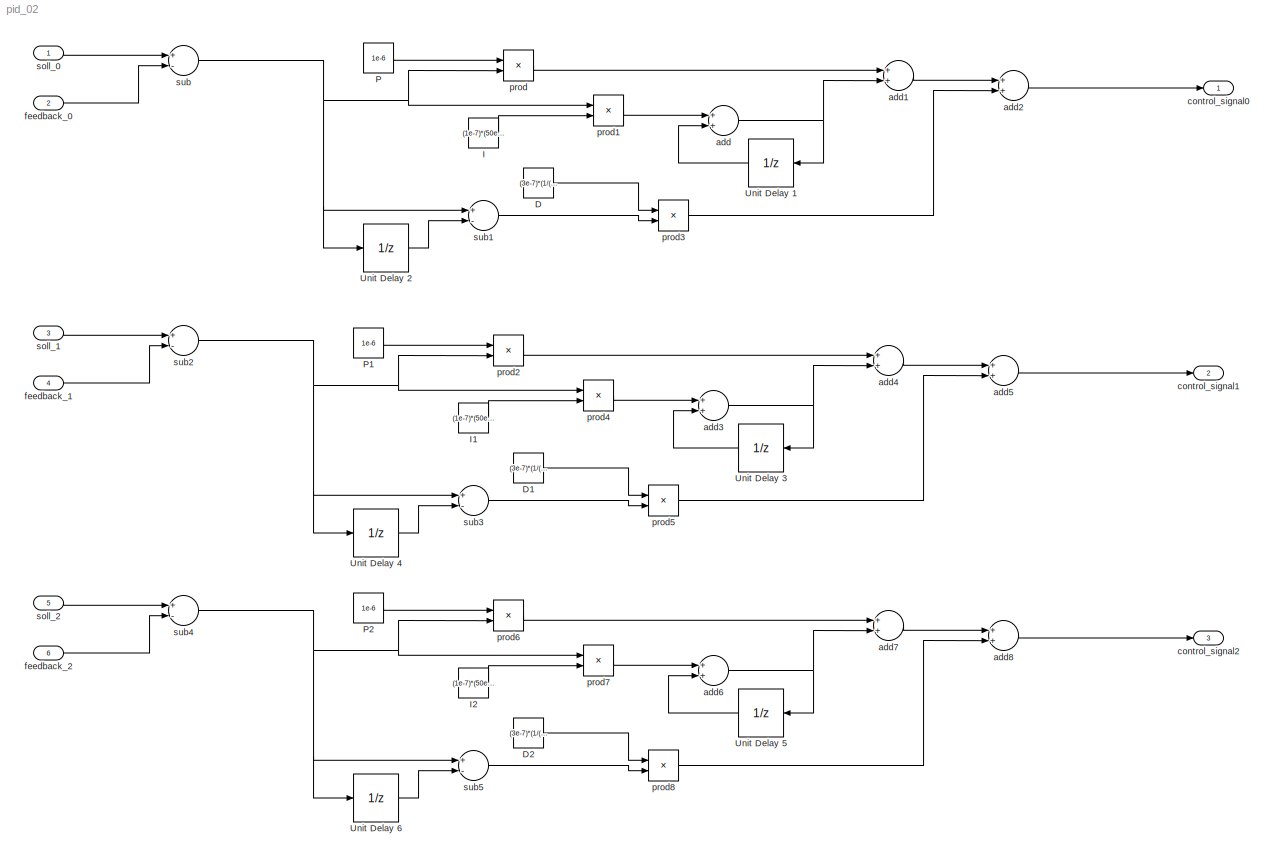
MODEL pid_02
KIND model
WORKSPACE source: MATLAB code (in-file)
WORKSPACE SampleRate = 20000
WORKSPACE Ts = 1/SampleRate  (= 5e-05)
WORKSPACE M = 1.4e-6  (= 1.4e-06)
WORKSPACE saturationlimit = 7.9999
WORKSPACE acceleration = 4000000
WORKSPACE accel_period = 10
BLOCK [Constant] D
  OutDataTypeStr = Inherit: Inherit via back propagation
  SID = 415
  Value = (3e-7)*(1/(50e-6))
BLOCK [Constant] D1
  OutDataTypeStr = Inherit: Inherit via back propagation
  SID = 419
  Value = (3e-7)*(1/(50e-6))
BLOCK [Constant] D2
  OutDataTypeStr = Inherit: Inherit via back propagation
  SID = 436
  Value = (3e-7)*(1/(50e-6))
BLOCK [Constant] I
  OutDataTypeStr = fixdt(1,16,34)
  SID = 399
  Value = (1e-7)*(50e-6)
BLOCK [Constant] I1
  OutDataTypeStr = fixdt(1,16,34)
  SID = 420
  Value = (1e-7)*(50e-6)
BLOCK [Constant] I2
  OutDataTypeStr = fixdt(1,16,34)
  SID = 437
  Value = (1e-7)*(50e-6)
BLOCK [Constant] P
  OutDataTypeStr = fixdt(1,16,34)
  SID = 392
  Value = 1e-6
BLOCK [Constant] P1
  OutDataTypeStr = fixdt(1,16,34)
  SID = 421
  Value = 1e-6
BLOCK [Constant] P2
  OutDataTypeStr = fixdt(1,16,34)
  SID = 438
  Value = 1e-6
BLOCK [UnitDelay] Unit Delay 1
  HasFrameUpgradeWarning = on
  SID = 398
  SampleTime = -1
BLOCK [UnitDelay] Unit Delay 2
  HasFrameUpgradeWarning = on
  SID = 407
  SampleTime = -1
BLOCK [UnitDelay] Unit Delay 3
  HasFrameUpgradeWarning = on
  SID = 423
  SampleTime = -1
BLOCK [UnitDelay] Unit Delay 4
  HasFrameUpgradeWarning = on
  SID = 424
  SampleTime = -1
BLOCK [UnitDelay] Unit Delay 5
  HasFrameUpgradeWarning = on
  SID = 440
  SampleTime = -1
BLOCK [UnitDelay] Unit Delay 6
  HasFrameUpgradeWarning = on
  SID = 441
  SampleTime = -1
BLOCK [Sum] add
  InputSameDT = off
  OutDataTypeStr = fixdt(1,32,28)
  Ports = [2, 1]
  SID = 401
  SaturateOnIntegerOverflow = off
BLOCK [Sum] add1
  InputSameDT = off
  OutDataTypeStr = fixdt(1,32,28)
  Ports = [2, 1]
  SID = 402
  SaturateOnIntegerOverflow = off
BLOCK [Sum] add2
  InputSameDT = off
  OutDataTypeStr = fixdt(1,32,28)
  Ports = [2, 1]
  SID = 403
  SaturateOnIntegerOverflow = off
BLOCK [Sum] add3
  InputSameDT = off
  OutDataTypeStr = fixdt(1,32,28)
  Ports = [2, 1]
  SID = 425
  SaturateOnIntegerOverflow = off
BLOCK [Sum] add4
  InputSameDT = off
  OutDataTypeStr = fixdt(1,32,28)
  Ports = [2, 1]
  SID = 426
  SaturateOnIntegerOverflow = off
BLOCK [Sum] add5
  InputSameDT = off
  OutDataTypeStr = fixdt(1,32,28)
  Ports = [2, 1]
  SID = 427
  SaturateOnIntegerOverflow = off
BLOCK [Sum] add6
  InputSameDT = off
  OutDataTypeStr = fixdt(1,32,28)
  Ports = [2, 1]
  SID = 442
  SaturateOnIntegerOverflow = off
BLOCK [Sum] add7
  InputSameDT = off
  OutDataTypeStr = fixdt(1,32,28)
  Ports = [2, 1]
  SID = 443
  SaturateOnIntegerOverflow = off
BLOCK [Sum] add8
  InputSameDT = off
  OutDataTypeStr = fixdt(1,32,28)
  Ports = [2, 1]
  SID = 444
  SaturateOnIntegerOverflow = off
BLOCK [Outport] control_signal0
  IconDisplay = Port number
  SID = 144
BLOCK [Outport] control_signal1
  IconDisplay = Port number
  Port = 2
  SID = 433
BLOCK [Outport] control_signal2
  IconDisplay = Port number
  Port = 3
  SID = 450
BLOCK [Inport] feedback_0
  IconDisplay = Port number
  OutDataTypeStr = fixdt(1,32,16)
  Port = 2
  SID = 186
BLOCK [Inport] feedback_1
  IconDisplay = Port number
  OutDataTypeStr = fixdt(1,32,16)
  Port = 4
  SID = 418
BLOCK [Inport] feedback_2
  IconDisplay = Port number
  OutDataTypeStr = fixdt(1,32,16)
  Port = 6
  SID = 435
BLOCK [Product] prod
  InputSameDT = off
  OutDataTypeStr = fixdt(1,32,33)
  Ports = [2, 1]
  SID = 393
  SaturateOnIntegerOverflow = off
BLOCK [Product] prod1
  InputSameDT = off
  OutDataTypeStr = fixdt(1,32,33)
  Ports = [2, 1]
  SID = 400
  SaturateOnIntegerOverflow = off
BLOCK [Product] prod2
  InputSameDT = off
  OutDataTypeStr = fixdt(1,32,33)
  Ports = [2, 1]
  SID = 428
  SaturateOnIntegerOverflow = off
BLOCK [Product] prod3
  InputSameDT = off
  OutDataTypeStr = fixdt(1,32,33)
  Ports = [2, 1]
  SID = 416
  SaturateOnIntegerOverflow = off
BLOCK [Product] prod4
  InputSameDT = off
  OutDataTypeStr = fixdt(1,32,33)
  Ports = [2, 1]
  SID = 429
  SaturateOnIntegerOverflow = off
BLOCK [Product] prod5
  InputSameDT = off
  OutDataTypeStr = fixdt(1,32,33)
  Ports = [2, 1]
  SID = 430
  SaturateOnIntegerOverflow = off
BLOCK [Product] prod6
  InputSameDT = off
  OutDataTypeStr = fixdt(1,32,33)
  Ports = [2, 1]
  SID = 445
  SaturateOnIntegerOverflow = off
BLOCK [Product] prod7
  InputSameDT = off
  OutDataTypeStr = fixdt(1,32,33)
  Ports = [2, 1]
  SID = 446
  SaturateOnIntegerOverflow = off
BLOCK [Product] prod8
  InputSameDT = off
  OutDataTypeStr = fixdt(1,32,33)
  Ports = [2, 1]
  SID = 447
  SaturateOnIntegerOverflow = off
BLOCK [Inport] soll_0
  IconDisplay = Port number
  OutDataTypeStr = fixdt(1,32,16)
  SID = 126
BLOCK [Inport] soll_1
  IconDisplay = Port number
  OutDataTypeStr = fixdt(1,32,16)
  Port = 3
  SID = 417
BLOCK [Inport] soll_2
  IconDisplay = Port number
  OutDataTypeStr = fixdt(1,32,16)
  Port = 5
  SID = 434
BLOCK [Sum] sub
  InputSameDT = off
  Inputs = +-
  OutDataTypeStr = fixdt(1,32,16)
  Ports = [2, 1]
  SID = 394
  SaturateOnIntegerOverflow = off
BLOCK [Sum] sub1
  InputSameDT = off
  Inputs = +-
  OutDataTypeStr = fixdt(1,32,16)
  Ports = [2, 1]
  SID = 408
  SaturateOnIntegerOverflow = off
BLOCK [Sum] sub2
  InputSameDT = off
  Inputs = +-
  OutDataTypeStr = fixdt(1,32,16)
  Ports = [2, 1]
  SID = 431
  SaturateOnIntegerOverflow = off
BLOCK [Sum] sub3
  InputSameDT = off
  Inputs = +-
  OutDataTypeStr = fixdt(1,32,16)
  Ports = [2, 1]
  SID = 432
  SaturateOnIntegerOverflow = off
BLOCK [Sum] sub4
  InputSameDT = off
  Inputs = +-
  OutDataTypeStr = fixdt(1,32,16)
  Ports = [2, 1]
  SID = 448
  SaturateOnIntegerOverflow = off
BLOCK [Sum] sub5
  InputSameDT = off
  Inputs = +-
  OutDataTypeStr = fixdt(1,32,16)
  Ports = [2, 1]
  SID = 449
  SaturateOnIntegerOverflow = off
LINE D1:1 -> prod5:1
LINE D2:1 -> prod8:1
LINE D:1 -> prod3:1
LINE I1:1 -> prod4:2
LINE I2:1 -> prod7:2
LINE I:1 -> prod1:2
LINE P1:1 -> prod2:1
LINE P2:1 -> prod6:1
LINE P:1 -> prod:1
LINE Unit Delay 1:1 -> add:2
LINE Unit Delay 2:1 -> sub1:2
LINE Unit Delay 3:1 -> add3:2
LINE Unit Delay 4:1 -> sub3:2
LINE Unit Delay 5:1 -> add6:2
LINE Unit Delay 6:1 -> sub5:2
LINE add1:1 -> add2:1
LINE add2:1 -> control_signal0:1
NET add3:1 -> Unit Delay 3:1, add4:2
LINE add4:1 -> add5:1
LINE add5:1 -> control_signal1:1
NET add6:1 -> Unit Delay 5:1, add7:2
LINE add7:1 -> add8:1
LINE add8:1 -> control_signal2:1
NET add:1 -> Unit Delay 1:1, add1:2
LINE feedback_0:1 -> sub:2
LINE feedback_1:1 -> sub2:2
LINE feedback_2:1 -> sub4:2
LINE prod1:1 -> add:1
LINE prod2:1 -> add4:1
LINE prod3:1 -> add2:2
LINE prod4:1 -> add3:1
LINE prod5:1 -> add5:2
LINE prod6:1 -> add7:1
LINE prod7:1 -> add6:1
LINE prod8:1 -> add8:2
LINE prod:1 -> add1:1
LINE soll_0:1 -> sub:1
LINE soll_1:1 -> sub2:1
LINE soll_2:1 -> sub4:1
LINE sub1:1 -> prod3:2
NET sub2:1 -> Unit Delay 4:1, prod2:2, prod4:1, sub3:1
LINE sub3:1 -> prod5:2
NET sub4:1 -> Unit Delay 6:1, prod6:2, prod7:1, sub5:1
LINE sub5:1 -> prod8:2
NET sub:1 -> Unit Delay 2:1, prod1:1, prod:2, sub1:1
note: NET lines group one-source signal fan-out (src -> all destinations, sorted); 1:1 wires keep LINE
